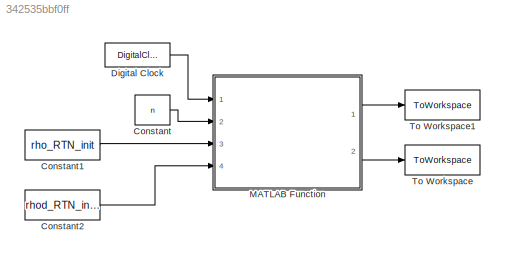
MODEL slx_342535bbf0ff
KIND model
CONFIG AbsTol = auto
CONFIG EnableMultiTasking = off
CONFIG FixedStep = stepSize
CONFIG MaxStep = auto
CONFIG MinStep = auto
CONFIG RelTol = 1e-3
CONFIG SampleTimeConstraint = Unconstrained
CONFIG Solver = FixedStepAuto
CONFIG SolverName = FixedStepAuto
CONFIG StartTime = 0.0
CONFIG StopTime = stopTime
BLOCK [Constant] Constant
  Value = n
BLOCK [Constant] Constant1
  Value = rho_RTN_init
BLOCK [Constant] Constant2
  Value = rhod_RTN_init
BLOCK [DigitalClock] Digital Clock
  SampleTime = stepSize
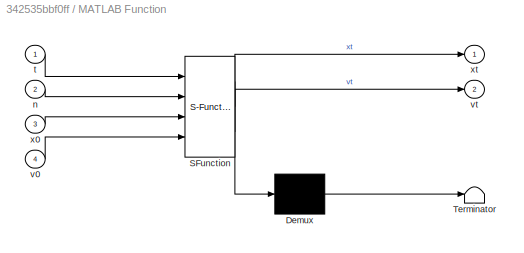
BLOCK [SubSystem] MATLAB Function
  ErrorFcn = Stateflow.Translate.translate
  PermitHierarchicalResolution = ExplicitOnly
  Ports = [4, 2]
  RequestExecContextInheritance = off
  SFBlockType = MATLAB Function
  TreatAsAtomicUnit = on
BLOCK [Demux] MATLAB Function/ Demux 
  Outputs = 1
  Ports = [1, 1]
BLOCK [S-Function] MATLAB Function/ SFunction 
  EnableBusSupport = on
  FunctionName = sf_sfun
  PortCounts = [4 3]
  Ports = [4, 3]
  SFcnIsStateOwnerBlock = off
  SFunctionDeploymentMode = off
  Tag = Stateflow S-Function HWC 2
BLOCK [Terminator] MATLAB Function/ Terminator 
BLOCK [Inport] MATLAB Function/n
  IconDisplay = Port number
  Port = 2
BLOCK [Inport] MATLAB Function/t
  IconDisplay = Port number
BLOCK [Inport] MATLAB Function/v0
  IconDisplay = Port number
  Port = 4
BLOCK [Outport] MATLAB Function/vt
  IconDisplay = Port number
  Port = 2
BLOCK [Inport] MATLAB Function/x0
  IconDisplay = Port number
  Port = 3
BLOCK [Outport] MATLAB Function/xt
  IconDisplay = Port number
BLOCK [ToWorkspace] To Workspace
  FixptAsFi = on
  MaxDataPoints = inf
  Ports = [1]
  SampleTime = -1
  Save2DSignal = 3-D array (concatenate along third dimension)
  VariableName = vel_RTN_HCW
BLOCK [ToWorkspace] To Workspace1
  FixptAsFi = on
  MaxDataPoints = inf
  Ports = [1]
  SampleTime = -1
  Save2DSignal = 3-D array (concatenate along third dimension)
  VariableName = pos_RTN_HCW
LINE Constant1:1 -> MATLAB Function:3
LINE Constant2:1 -> MATLAB Function:4
LINE Constant:1 -> MATLAB Function:2
LINE Digital Clock:1 -> MATLAB Function:1
LINE MATLAB Function:1 -> To Workspace1:1
LINE MATLAB Function:2 -> To Workspace:1
CHART MATLAB Function states=1 transitions=1
  STATE_LABEL 'eML_blk_kernel()'
  STATE_LABEL 'SCRIPT:\nfunction [xt,vt] = HCW_PROP(t,n,x0,v0)\n\nx = x0(1); dx = v0(1);\ny = x0(2); dy = v0(2);\nz = x0(3); dz = v0(3);\n\ns = sin(n*t);\nc = cos(n*t);\n\neAt = [1 0 -c s 0 0;\n    -1.5*t 1 2*s -2*c 0 0;\n    0 0 0 0 s -c;\n    0 0 s -c 0 0;\n    -1.5 0 2*c 2*s 0 0;\n    0 0 0 0 c s];\n\nx_all = eAt*x0;\n\n\nxt = x_all(1:3);\nvt = x_all(4:6);\n\nend'
